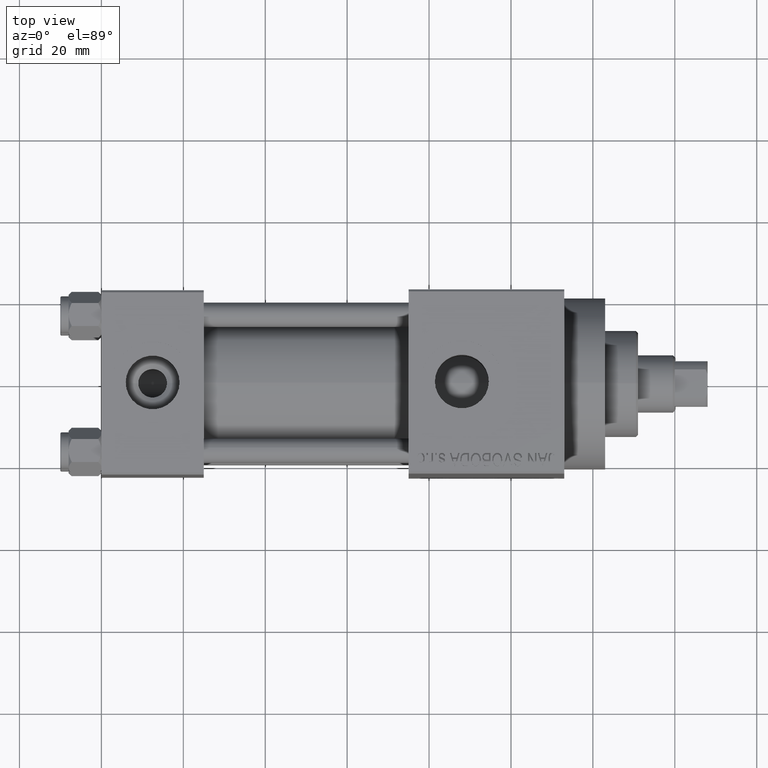
[diagram: clean part render]
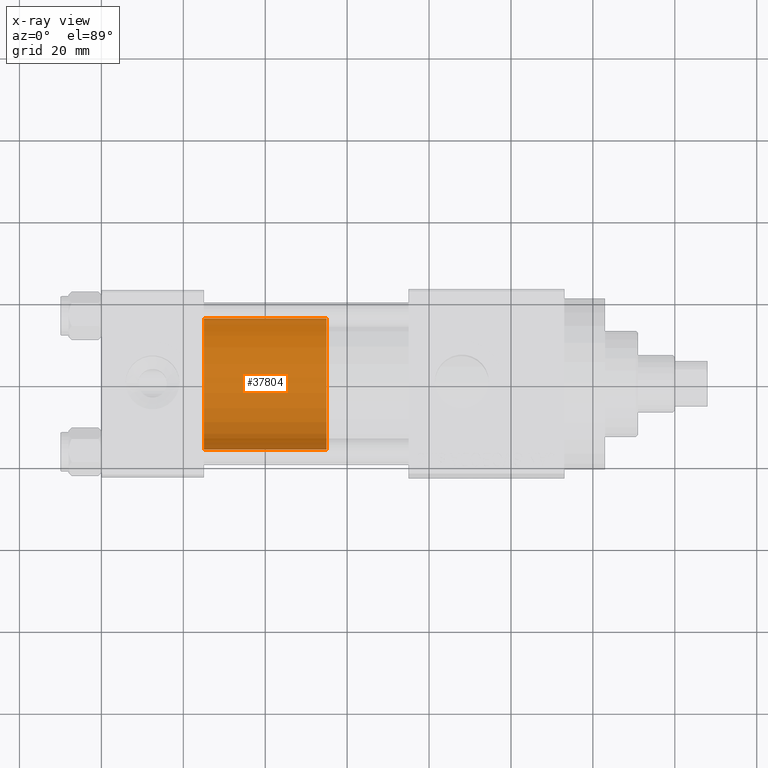
[diagram: x-ray — body ghosted, one internal face saturated and labeled with its STEP entity id]
A machine part, top view, then the same camera in x-ray: the body is ghosted and one INTERNAL B-rep face — a face not visible from any outside direction — is saturated and labeled: STEP entity #37804.
In plain terms, the highlighted cylindrical surface (partial cylindrical patch) has radius 16 mm, axis along (-1, 0, 0).
Its self-contained STEP definition (entity closure, byte-faithful):
#217 = VERTEX_POINT ( 'NONE', #19340 ) ;
#1338 = AXIS2_PLACEMENT_3D ( 'NONE', #17553, #32092, #21345 ) ;
#1632 = DIRECTION ( 'NONE',  ( 0.000000000000000000, 0.000000000000000000, 1.000000000000000000 ) ) ;
#1864 = CARTESIAN_POINT ( 'NONE',  ( 0.000000000000000000, 0.000000000000000000, 0.000000000000000000 ) ) ;
#2812 = VERTEX_POINT ( 'NONE', #21014 ) ;
#8790 = CYLINDRICAL_SURFACE ( 'NONE', #25766, 16.00000000000000000 ) ;
#9124 = VECTOR ( 'NONE', #40867, 1000.000000000000000 ) ;
#11473 = ORIENTED_EDGE ( 'NONE', *, *, #39442, .T. ) ;
#12159 = CARTESIAN_POINT ( 'NONE',  ( 16.00000000000000000, 1.959434878635765131E-15, 30.00000000000000000 ) ) ;
#12595 = FACE_OUTER_BOUND ( 'NONE', #33154, .T. ) ;
#14965 = CARTESIAN_POINT ( 'NONE',  ( -16.00000000000000000, 0.000000000000000000, 30.00000000000000000 ) ) ;
#16159 = DIRECTION ( 'NONE',  ( 1.000000000000000000, 0.000000000000000000, 0.000000000000000000 ) ) ;
#17347 = EDGE_CURVE ( 'NONE', #45081, #217, #43555, .T. ) ;
#17553 = CARTESIAN_POINT ( 'NONE',  ( 0.000000000000000000, 0.000000000000000000, 30.00000000000000000 ) ) ;
#18807 = CIRCLE ( 'NONE', #1338, 16.00000000000000000 ) ;
#19298 = VECTOR ( 'NONE', #33076, 1000.000000000000000 ) ;
#19340 = CARTESIAN_POINT ( 'NONE',  ( -16.00000000000000000, 0.000000000000000000, 0.000000000000000000 ) ) ;
#19631 = VERTEX_POINT ( 'NONE', #12159 ) ;
#19745 = CARTESIAN_POINT ( 'NONE',  ( 0.000000000000000000, 0.000000000000000000, 30.00000000000000000 ) ) ;
#20768 = EDGE_CURVE ( 'NONE', #2812, #217, #44282, .T. ) ;
#21014 = CARTESIAN_POINT ( 'NONE',  ( -16.00000000000000000, 0.000000000000000000, 30.00000000000000000 ) ) ;
#21345 = DIRECTION ( 'NONE',  ( 1.000000000000000000, 0.000000000000000000, 0.000000000000000000 ) ) ;
#22508 = CARTESIAN_POINT ( 'NONE',  ( 16.00000000000000000, 1.959434878635765131E-15, 0.000000000000000000 ) ) ;
#25766 = AXIS2_PLACEMENT_3D ( 'NONE', #19745, #44542, #37402 ) ;
#26820 = AXIS2_PLACEMENT_3D ( 'NONE', #1864, #1632, #16159 ) ;
#27949 = ORIENTED_EDGE ( 'NONE', *, *, #20768, .F. ) ;
#29330 = EDGE_CURVE ( 'NONE', #19631, #2812, #18807, .T. ) ;
#30378 = CARTESIAN_POINT ( 'NONE',  ( 16.00000000000000000, 1.959434878635765131E-15, 30.00000000000000000 ) ) ;
#32092 = DIRECTION ( 'NONE',  ( 0.000000000000000000, 0.000000000000000000, 1.000000000000000000 ) ) ;
#33076 = DIRECTION ( 'NONE',  ( -0.000000000000000000, -0.000000000000000000, -1.000000000000000000 ) ) ;
#33154 = EDGE_LOOP ( 'NONE', ( #43720, #11473, #46025, #27949 ) ) ;
#34423 = LINE ( 'NONE', #30378, #9124 ) ;
#37402 = DIRECTION ( 'NONE',  ( -1.000000000000000000, 0.000000000000000000, 0.000000000000000000 ) ) ;
#37804 = ADVANCED_FACE ( 'NONE', ( #12595 ), #8790, .T. ) ;
#39442 = EDGE_CURVE ( 'NONE', #19631, #45081, #34423, .T. ) ;
#40867 = DIRECTION ( 'NONE',  ( -0.000000000000000000, -0.000000000000000000, -1.000000000000000000 ) ) ;
#43555 = CIRCLE ( 'NONE', #26820, 16.00000000000000000 ) ;
#43720 = ORIENTED_EDGE ( 'NONE', *, *, #29330, .F. ) ;
#44282 = LINE ( 'NONE', #14965, #19298 ) ;
#44542 = DIRECTION ( 'NONE',  ( -0.000000000000000000, -0.000000000000000000, -1.000000000000000000 ) ) ;
#45081 = VERTEX_POINT ( 'NONE', #22508 ) ;
#46025 = ORIENTED_EDGE ( 'NONE', *, *, #17347, .T. ) ;